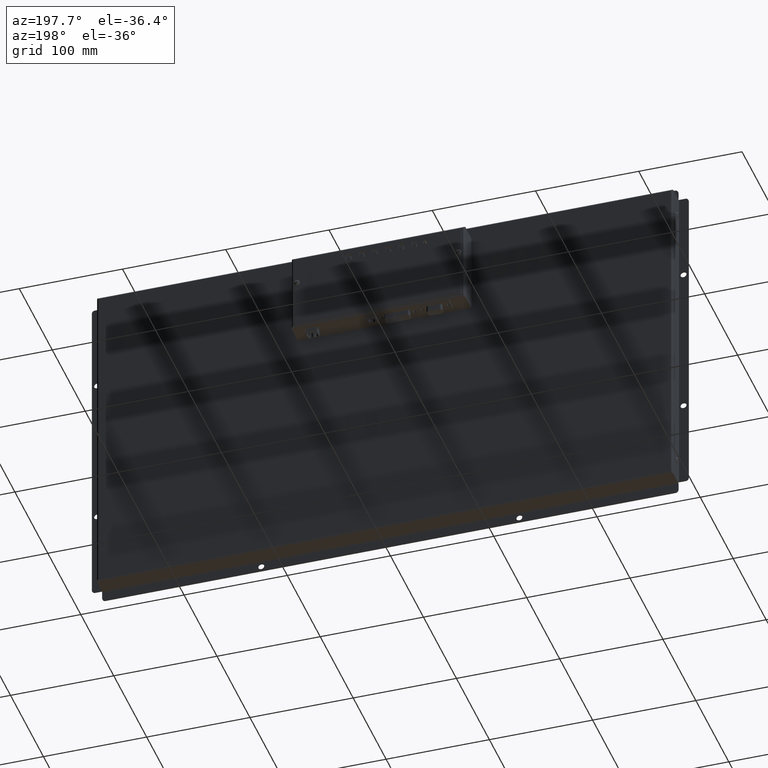
[diagram: clean part render]
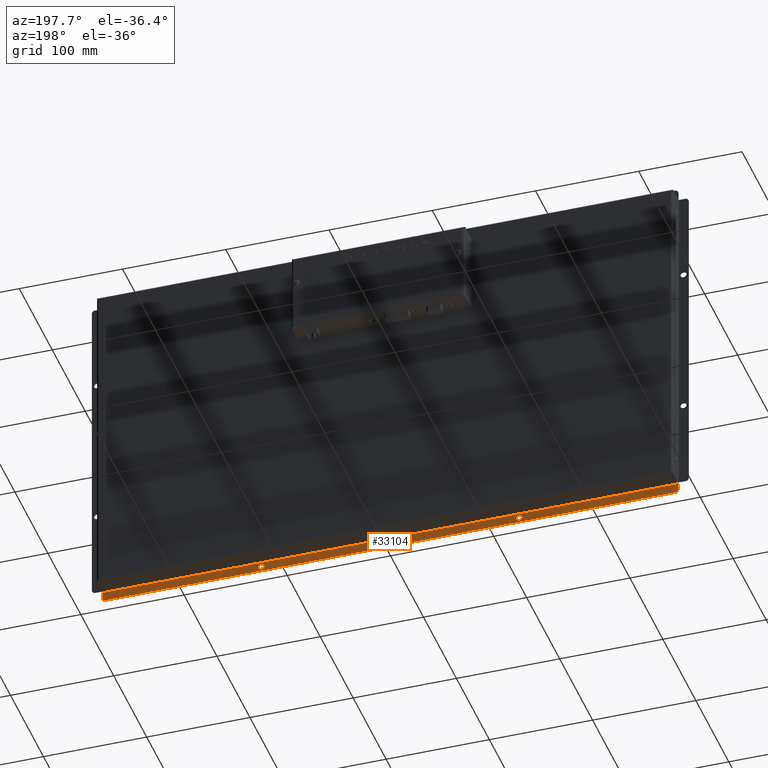
[diagram: same view with one face highlighted and labeled with its STEP entity id]
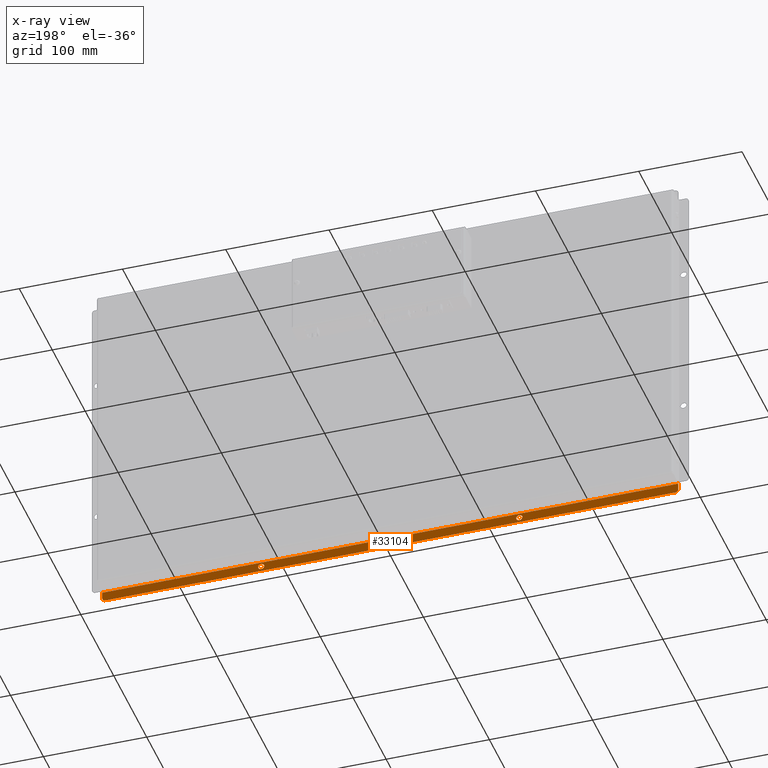
[diagram: x-ray of the same camera — body ghosted, the highlighted face saturated]
A machine part, auxiliary view. The second image highlights one B-rep face of the part: STEP entity #33104.
The next image is the same camera in x-ray: the body ghosted, the highlighted face saturated — about 0% of this face is hidden behind the body in this view.
In plain terms, the highlighted planar face has unit normal (-0, -1, 0).
Its self-contained STEP definition (entity closure, byte-faithful):
#1278=FACE_BOUND('',#3585,.T.);
#1279=FACE_BOUND('',#3586,.T.);
#1701=FACE_OUTER_BOUND('',#3584,.T.);
#3584=EDGE_LOOP('',(#21794,#21795,#21796,#21797,#21798,#21799));
#3585=EDGE_LOOP('',(#21800));
#3586=EDGE_LOOP('',(#21801));
#5866=LINE('',#48573,#9019);
#5869=LINE('',#48579,#9022);
#5870=LINE('',#48583,#9023);
#5871=LINE('',#48584,#9024);
#9019=VECTOR('',#39242,10.);
#9022=VECTOR('',#39247,10.);
#9023=VECTOR('',#39250,10.);
#9024=VECTOR('',#39251,10.);
#12026=CIRCLE('',#35554,3.);
#12044=CIRCLE('',#35578,3.);
#12049=CIRCLE('',#35585,3.);
#12050=CIRCLE('',#35588,3.);
#13484=VERTEX_POINT('',#48503);
#13502=VERTEX_POINT('',#48551);
#13508=VERTEX_POINT('',#48566);
#13509=VERTEX_POINT('',#48568);
#13510=VERTEX_POINT('',#48572);
#13512=VERTEX_POINT('',#48578);
#13513=VERTEX_POINT('',#48580);
#13514=VERTEX_POINT('',#48582);
#16770=EDGE_CURVE('',#13484,#13484,#12026,.T.);
#16794=EDGE_CURVE('',#13502,#13502,#12044,.T.);
#16801=EDGE_CURVE('',#13508,#13509,#12049,.T.);
#16803=EDGE_CURVE('',#13510,#13509,#5866,.T.);
#16806=EDGE_CURVE('',#13508,#13512,#5869,.T.);
#16807=EDGE_CURVE('',#13513,#13512,#12050,.T.);
#16808=EDGE_CURVE('',#13514,#13513,#5870,.T.);
#16809=EDGE_CURVE('',#13514,#13510,#5871,.T.);
#21794=ORIENTED_EDGE('',*,*,#16801,.F.);
#21795=ORIENTED_EDGE('',*,*,#16806,.T.);
#21796=ORIENTED_EDGE('',*,*,#16807,.F.);
#21797=ORIENTED_EDGE('',*,*,#16808,.F.);
#21798=ORIENTED_EDGE('',*,*,#16809,.T.);
#21799=ORIENTED_EDGE('',*,*,#16803,.T.);
#21800=ORIENTED_EDGE('',*,*,#16770,.T.);
#21801=ORIENTED_EDGE('',*,*,#16794,.T.);
#30733=PLANE('',#35587);
#33104=ADVANCED_FACE('',(#1701,#1278,#1279),#30733,.F.);
#35554=AXIS2_PLACEMENT_3D('',#48505,#39167,#39168);
#35578=AXIS2_PLACEMENT_3D('',#48553,#39221,#39222);
#35585=AXIS2_PLACEMENT_3D('',#48569,#39237,#39238);
#35587=AXIS2_PLACEMENT_3D('',#48577,#39245,#39246);
#35588=AXIS2_PLACEMENT_3D('',#48581,#39248,#39249);
#39167=DIRECTION('center_axis',(1.26162594497521E-16,3.61659731774479E-14,
-1.));
#39168=DIRECTION('ref_axis',(1.,-7.41513365530766E-31,3.82358215767803E-19));
#39221=DIRECTION('center_axis',(1.26162594497521E-16,3.61659731774479E-14,
-1.));
#39222=DIRECTION('ref_axis',(1.,-7.41513365530766E-31,3.82358215767803E-19));
#39237=DIRECTION('center_axis',(1.26162594497521E-16,3.61659731774479E-14,
-1.));
#39238=DIRECTION('ref_axis',(-0.707106781186556,-0.707106781186539,-2.3028022727362E-14));
#39242=DIRECTION('',(4.72482120935551E-14,-1.,-2.64258162477837E-14));
#39245=DIRECTION('center_axis',(1.26162594497521E-16,3.61659731774479E-14,
-1.));
#39246=DIRECTION('ref_axis',(-1.28883479280479E-16,1.,3.61659731774479E-14));
#39247=DIRECTION('',(1.,1.28883479280474E-16,1.28883479280481E-16));
#39248=DIRECTION('center_axis',(1.26162594497521E-16,3.61659731774479E-14,
-1.));
#39249=DIRECTION('ref_axis',(0.707106781186531,-0.707106781186564,-2.30280227273612E-14));
#39250=DIRECTION('',(-4.69904451349941E-14,-1.,-2.64258162477837E-14));
#39251=DIRECTION('',(-1.,-1.28883479280474E-16,-1.26162594497526E-16));
#48503=CARTESIAN_POINT('',(122.,-168.,-15.9999999999999));
#48505=CARTESIAN_POINT('Origin',(125.,-168.,-15.9999999999999));
#48551=CARTESIAN_POINT('',(-128.,-168.,-15.9999999999999));
#48553=CARTESIAN_POINT('Origin',(-125.,-168.,-15.9999999999999));
#48566=CARTESIAN_POINT('',(-275.999999999999,-173.,-16.0000000000003));
#48568=CARTESIAN_POINT('',(-278.999999999999,-170.,-16.0000000000001));
#48569=CARTESIAN_POINT('Origin',(-275.999999999999,-170.,-16.0000000000001));
#48572=CARTESIAN_POINT('',(-278.999999999999,-163.6,-15.9999999999999));
#48573=CARTESIAN_POINT('',(-279.,-161.338053289415,-15.9999999999999));
#48577=CARTESIAN_POINT('Origin',(1.42419863446759E-13,-167.169026644707,
-16.));
#48578=CARTESIAN_POINT('',(275.999999999999,-173.,-16.0000000000002));
#48579=CARTESIAN_POINT('',(-279.,-173.,-16.0000000000003));
#48580=CARTESIAN_POINT('',(278.999999999999,-170.,-16.0000000000001));
#48581=CARTESIAN_POINT('Origin',(275.999999999999,-170.,-16.0000000000001));
#48582=CARTESIAN_POINT('',(279.,-163.6,-15.9999999999999));
#48583=CARTESIAN_POINT('',(279.,-161.338053289415,-15.9999999999998));
#48584=CARTESIAN_POINT('',(1.42099251347875E-13,-163.6,-15.9999999999999));